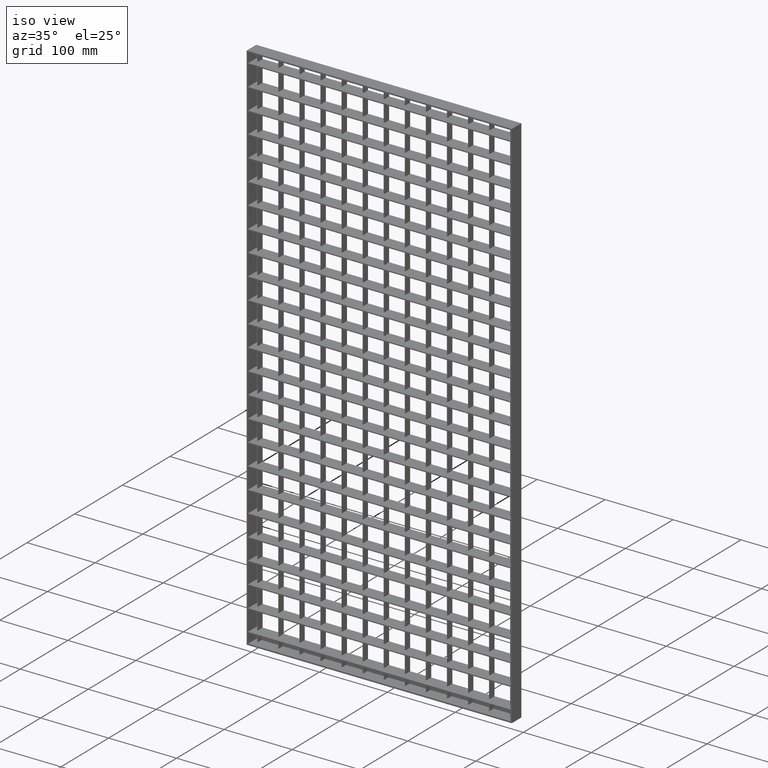
[diagram: clean part render]
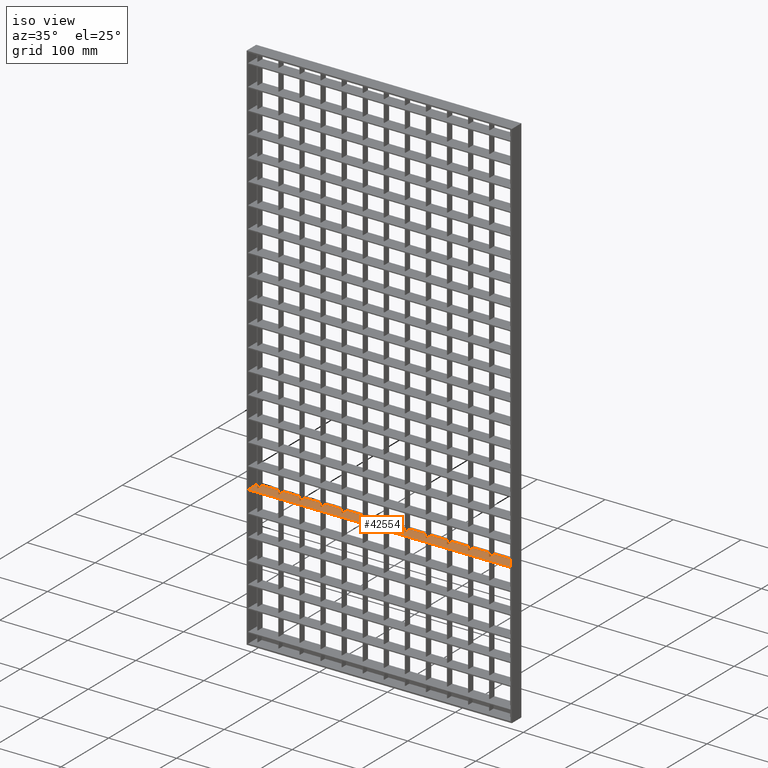
[diagram: same view with one face highlighted and labeled with its STEP entity id]
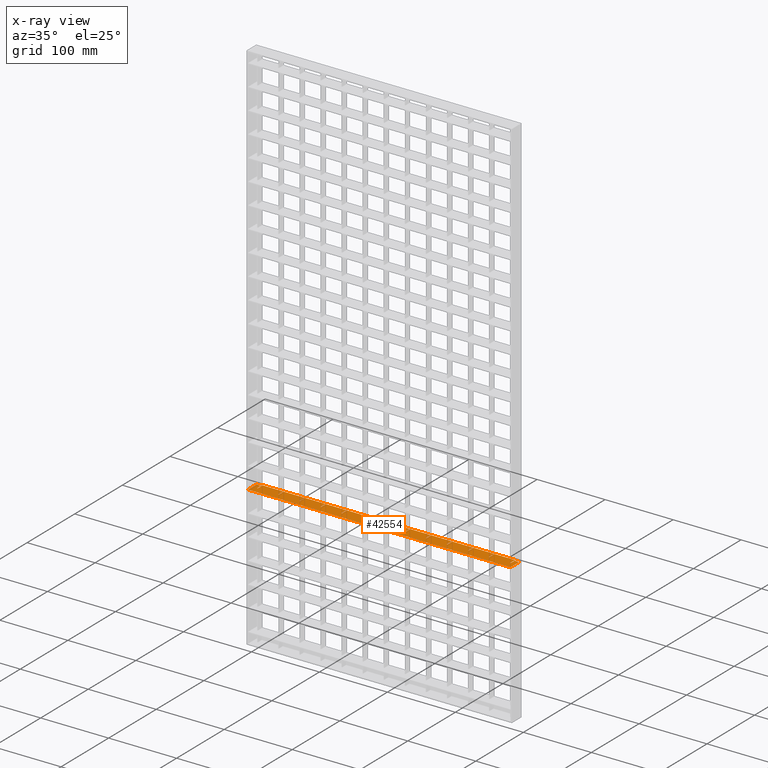
[diagram: x-ray of the same camera — body ghosted, the highlighted face saturated]
A machine part, iso view. The second image highlights one B-rep face of the part: STEP entity #42554.
The next image is the same camera in x-ray: the body ghosted, the highlighted face saturated — about 0% of this face is hidden behind the body in this view.
In plain terms, the highlighted planar face has unit normal (0, 0, -1).
Its self-contained STEP definition (entity closure, byte-faithful):
#220 = LINE ( 'NONE', #12262, #16408 ) ;
#249 = ORIENTED_EDGE ( 'NONE', *, *, #36149, .T. ) ;
#287 = VECTOR ( 'NONE', #23202, 1000.000000000000000 ) ;
#300 = ORIENTED_EDGE ( 'NONE', *, *, #33059, .T. ) ;
#628 = VECTOR ( 'NONE', #3804, 1000.000000000000000 ) ;
#653 = DIRECTION ( 'NONE',  ( 1.000000000000000000, -3.061616997868380700E-016, 0.0000000000000000000 ) ) ;
#769 = CARTESIAN_POINT ( 'NONE',  ( 226.5000000000001100, -9.999999999999877400, -583.2499999999997700 ) ) ;
#839 = LINE ( 'NONE', #14667, #2681 ) ;
#850 = CARTESIAN_POINT ( 'NONE',  ( 318.5000000000001100, 1.006284330175759700E-015, -583.2499999999997700 ) ) ;
#895 = VERTEX_POINT ( 'NONE', #30580 ) ;
#1259 = VERTEX_POINT ( 'NONE', #51604 ) ;
#1494 = DIRECTION ( 'NONE',  ( 1.000000000000000000, -3.061616997868380700E-016, 0.0000000000000000000 ) ) ;
#1510 = LINE ( 'NONE', #3032, #33172 ) ;
#1554 = LINE ( 'NONE', #41578, #6492 ) ;
#1635 = DIRECTION ( 'NONE',  ( 0.0000000000000000000, -1.000000000000000000, 0.0000000000000000000 ) ) ;
#1783 = ORIENTED_EDGE ( 'NONE', *, *, #12044, .T. ) ;
#1871 = ORIENTED_EDGE ( 'NONE', *, *, #38836, .F. ) ;
#1891 = VECTOR ( 'NONE', #43408, 1000.000000000000000 ) ;
#2017 = ORIENTED_EDGE ( 'NONE', *, *, #43592, .F. ) ;
#2133 = CARTESIAN_POINT ( 'NONE',  ( 408.0561711201315200, 10.00000000000012300, -583.2499999999997700 ) ) ;
#2319 = VECTOR ( 'NONE', #11040, 1000.000000000000000 ) ;
#2363 = VECTOR ( 'NONE', #15504, 1000.000000000000000 ) ;
#2480 = LINE ( 'NONE', #31766, #1891 ) ;
#2594 = LINE ( 'NONE', #34078, #21281 ) ;
#2681 = VECTOR ( 'NONE', #46591, 1000.000000000000000 ) ;
#2763 = CARTESIAN_POINT ( 'NONE',  ( 39.49999999999997900, 1.653965597401023900E-015, -583.2499999999997700 ) ) ;
#3019 = CARTESIAN_POINT ( 'NONE',  ( 39.49999999999997900, -9.999999999999877400, -583.2499999999997700 ) ) ;
#3032 = CARTESIAN_POINT ( 'NONE',  ( 408.0561711201315200, 10.00000000000012300, -583.2499999999997700 ) ) ;
#3284 = CARTESIAN_POINT ( 'NONE',  ( 195.0000000000000000, 8.000000000000001800, -583.2499999999997700 ) ) ;
#3315 = LINE ( 'NONE', #21277, #44335 ) ;
#3335 = CARTESIAN_POINT ( 'NONE',  ( 380.5000000000000600, 1.006284330175759700E-015, -583.2499999999997700 ) ) ;
#3448 = LINE ( 'NONE', #17012, #4098 ) ;
#3777 = DIRECTION ( 'NONE',  ( 0.0000000000000000000, 1.000000000000000000, 0.0000000000000000000 ) ) ;
#3804 = DIRECTION ( 'NONE',  ( -1.000000000000000000, -3.061616997868383100E-016, 0.0000000000000000000 ) ) ;
#3839 = VECTOR ( 'NONE', #17934, 1000.000000000000000 ) ;
#3869 = VECTOR ( 'NONE', #49291, 1000.000000000000000 ) ;
#3921 = LINE ( 'NONE', #2133, #12048 ) ;
#4014 = CARTESIAN_POINT ( 'NONE',  ( 408.0561711201315800, -6.938893903907228400E-015, -583.2499999999997700 ) ) ;
#4098 = VECTOR ( 'NONE', #21007, 1000.000000000000000 ) ;
#4112 = CARTESIAN_POINT ( 'NONE',  ( 408.0561711201315200, 10.00000000000012300, -583.2499999999997700 ) ) ;
#4150 = EDGE_CURVE ( 'NONE', #27555, #51453, #9851, .T. ) ;
#4234 = ORIENTED_EDGE ( 'NONE', *, *, #45040, .F. ) ;
#4284 = VERTEX_POINT ( 'NONE', #28096 ) ;
#4311 = VECTOR ( 'NONE', #15690, 1000.000000000000000 ) ;
#4324 = LINE ( 'NONE', #10275, #11200 ) ;
#4377 = ORIENTED_EDGE ( 'NONE', *, *, #11145, .F. ) ;
#4627 = VECTOR ( 'NONE', #35796, 1000.000000000000000 ) ;
#4748 = EDGE_CURVE ( 'NONE', #47775, #15348, #19683, .T. ) ;
#4888 = DIRECTION ( 'NONE',  ( -1.000000000000000000, -3.061616997868383100E-016, 0.0000000000000000000 ) ) ;
#6041 = CARTESIAN_POINT ( 'NONE',  ( 102.5000000000000300, -9.999999999999877400, -583.2499999999997700 ) ) ;
#6054 = CARTESIAN_POINT ( 'NONE',  ( 40.50000000000003600, 10.00000000000001100, -583.2499999999997700 ) ) ;
#6070 = VECTOR ( 'NONE', #12731, 1000.000000000000000 ) ;
#6384 = CARTESIAN_POINT ( 'NONE',  ( 226.5000000000001400, 1.809118201648459400E-015, -583.2499999999997700 ) ) ;
#6492 = VECTOR ( 'NONE', #41033, 1000.000000000000000 ) ;
#6670 = CARTESIAN_POINT ( 'NONE',  ( 163.5000000000000000, 10.00000000000000200, -583.2499999999997700 ) ) ;
#6679 = DIRECTION ( 'NONE',  ( 0.0000000000000000000, -1.000000000000000000, 0.0000000000000000000 ) ) ;
#6804 = EDGE_CURVE ( 'NONE', #38713, #46519, #32513, .T. ) ;
#6911 = VECTOR ( 'NONE', #10704, 1000.000000000000000 ) ;
#6990 = VECTOR ( 'NONE', #27703, 1000.000000000000000 ) ;
#7135 = LINE ( 'NONE', #47652, #4627 ) ;
#7309 = LINE ( 'NONE', #20007, #6070 ) ;
#7383 = CARTESIAN_POINT ( 'NONE',  ( 408.0561711201315800, 1.144917494144692700E-013, -583.2499999999997700 ) ) ;
#7468 = LINE ( 'NONE', #44441, #26124 ) ;
#7522 = VECTOR ( 'NONE', #49965, 1000.000000000000000 ) ;
#7614 = DIRECTION ( 'NONE',  ( 0.0000000000000000000, 1.000000000000000000, 0.0000000000000000000 ) ) ;
#7934 = DIRECTION ( 'NONE',  ( -1.000000000000000000, -3.061616997868383100E-016, 0.0000000000000000000 ) ) ;
#7967 = CARTESIAN_POINT ( 'NONE',  ( 381.5000000000000600, -9.999999999999877400, -583.2499999999997700 ) ) ;
#8002 = ORIENTED_EDGE ( 'NONE', *, *, #26164, .F. ) ;
#8029 = CARTESIAN_POINT ( 'NONE',  ( 288.5000000000001100, 10.00000000000008700, -583.2499999999997700 ) ) ;
#8086 = DIRECTION ( 'NONE',  ( 0.0000000000000000000, -1.000000000000000000, 0.0000000000000000000 ) ) ;
#8089 = ORIENTED_EDGE ( 'NONE', *, *, #23415, .F. ) ;
#8108 = VERTEX_POINT ( 'NONE', #9922 ) ;
#8225 = DIRECTION ( 'NONE',  ( 0.0000000000000000000, 1.000000000000000000, 0.0000000000000000000 ) ) ;
#8242 = ORIENTED_EDGE ( 'NONE', *, *, #47954, .T. ) ;
#8256 = EDGE_CURVE ( 'NONE', #34213, #49858, #51025, .T. ) ;
#8339 = CARTESIAN_POINT ( 'NONE',  ( 381.5000000000000600, 1.191588586062389900E-015, -583.2499999999997700 ) ) ;
#8636 = CARTESIAN_POINT ( 'NONE',  ( 2.000000000000003600, -10.00000000000000000, -583.2499999999997700 ) ) ;
#8667 = VECTOR ( 'NONE', #39142, 1000.000000000000000 ) ;
#8810 = ORIENTED_EDGE ( 'NONE', *, *, #22914, .T. ) ;
#8897 = LINE ( 'NONE', #16611, #6990 ) ;
#8934 = VERTEX_POINT ( 'NONE', #39312 ) ;
#8984 = CARTESIAN_POINT ( 'NONE',  ( 388.0000000000000000, -9.999999999999877400, -583.2499999999997700 ) ) ;
#9039 = VECTOR ( 'NONE', #6679, 1000.000000000000000 ) ;
#9428 = CARTESIAN_POINT ( 'NONE',  ( 195.5000000000000000, 10.00000000000005700, -583.2499999999997700 ) ) ;
#9617 = ORIENTED_EDGE ( 'NONE', *, *, #23058, .F. ) ;
#9800 = EDGE_CURVE ( 'NONE', #36032, #33552, #39652, .T. ) ;
#9825 = LINE ( 'NONE', #34245, #2319 ) ;
#9827 = CARTESIAN_POINT ( 'NONE',  ( 225.5000000000001100, 10.00000000000006800, -583.2499999999997700 ) ) ;
#9851 = LINE ( 'NONE', #3284, #48337 ) ;
#9922 = CARTESIAN_POINT ( 'NONE',  ( 256.5000000000001100, 10.00000000000007600, -583.2499999999997700 ) ) ;
#10034 = CARTESIAN_POINT ( 'NONE',  ( 408.0561711201315800, -5.377642775528102000E-014, -583.2499999999997700 ) ) ;
#10168 = DIRECTION ( 'NONE',  ( -1.000000000000000000, -3.061616997868383100E-016, 0.0000000000000000000 ) ) ;
#10275 = CARTESIAN_POINT ( 'NONE',  ( 408.0561711201315200, 10.00000000000012300, -583.2499999999997700 ) ) ;
#10283 = CARTESIAN_POINT ( 'NONE',  ( 71.50000000000001400, 0.0000000000000000000, -583.2499999999997700 ) ) ;
#10370 = VERTEX_POINT ( 'NONE', #31501 ) ;
#10704 = DIRECTION ( 'NONE',  ( 0.0000000000000000000, -1.000000000000000000, 0.0000000000000000000 ) ) ;
#10957 = CARTESIAN_POINT ( 'NONE',  ( 257.5000000000001100, 10.00000000000007600, -583.2499999999997700 ) ) ;
#11002 = CARTESIAN_POINT ( 'NONE',  ( 9.500000000000008900, 0.0000000000000000000, -583.2499999999997700 ) ) ;
#11040 = DIRECTION ( 'NONE',  ( 0.0000000000000000000, -1.000000000000000000, 0.0000000000000000000 ) ) ;
#11139 = CARTESIAN_POINT ( 'NONE',  ( 102.5000000000000300, 0.0000000000000000000, -583.2499999999997700 ) ) ;
#11145 = EDGE_CURVE ( 'NONE', #1259, #33552, #45116, .T. ) ;
#11200 = VECTOR ( 'NONE', #37982, 1000.000000000000000 ) ;
#11280 = LINE ( 'NONE', #34434, #6911 ) ;
#11316 = VERTEX_POINT ( 'NONE', #11139 ) ;
#11426 = CARTESIAN_POINT ( 'NONE',  ( 319.5000000000001100, 1.091655737101455300E-015, -583.2499999999997700 ) ) ;
#11718 = DIRECTION ( 'NONE',  ( 0.0000000000000000000, 1.000000000000000000, 0.0000000000000000000 ) ) ;
#11744 = ORIENTED_EDGE ( 'NONE', *, *, #9800, .T. ) ;
#11791 = VECTOR ( 'NONE', #45193, 1000.000000000000000 ) ;
#12044 = EDGE_CURVE ( 'NONE', #18430, #24119, #1510, .T. ) ;
#12048 = VECTOR ( 'NONE', #10168, 1000.000000000000000 ) ;
#12058 = CARTESIAN_POINT ( 'NONE',  ( 102.5000000000000300, 10.00000000000003000, -583.2499999999997700 ) ) ;
#12195 = CARTESIAN_POINT ( 'NONE',  ( 408.0561711201315200, 10.00000000000012300, -583.2499999999997700 ) ) ;
#12253 = LINE ( 'NONE', #25306, #19695 ) ;
#12262 = CARTESIAN_POINT ( 'NONE',  ( 288.5000000000001100, -9.999999999999877400, -583.2499999999997700 ) ) ;
#12281 = CARTESIAN_POINT ( 'NONE',  ( 408.0561711201315800, 7.632783294297951200E-014, -583.2499999999997700 ) ) ;
#12333 = CARTESIAN_POINT ( 'NONE',  ( 380.5000000000000600, -9.999999999999877400, -583.2499999999997700 ) ) ;
#12368 = VERTEX_POINT ( 'NONE', #10283 ) ;
#12435 = CARTESIAN_POINT ( 'NONE',  ( 8.500000000000007100, 8.365702838930745700E-016, -583.2499999999997700 ) ) ;
#12725 = DIRECTION ( 'NONE',  ( -1.000000000000000000, -3.061616997868380700E-016, 0.0000000000000000000 ) ) ;
#12731 = DIRECTION ( 'NONE',  ( 0.0000000000000000000, 1.000000000000000000, 0.0000000000000000000 ) ) ;
#12741 = LINE ( 'NONE', #30620, #287 ) ;
#12802 = VERTEX_POINT ( 'NONE', #32738 ) ;
#12929 = EDGE_CURVE ( 'NONE', #33005, #49545, #16212, .T. ) ;
#12945 = ORIENTED_EDGE ( 'NONE', *, *, #6804, .T. ) ;
#13196 = AXIS2_PLACEMENT_3D ( 'NONE', #41102, #44797, #21382 ) ;
#13542 = EDGE_CURVE ( 'NONE', #12802, #23915, #4324, .T. ) ;
#13603 = DIRECTION ( 'NONE',  ( 0.0000000000000000000, -1.000000000000000000, 0.0000000000000000000 ) ) ;
#13604 = CARTESIAN_POINT ( 'NONE',  ( 408.0561711201315800, -9.999999999999877400, -583.2499999999997700 ) ) ;
#13668 = LINE ( 'NONE', #6041, #44068 ) ;
#13889 = LINE ( 'NONE', #12333, #20695 ) ;
#14327 = CARTESIAN_POINT ( 'NONE',  ( 2.000000000000003600, 8.000000000000001800, -583.2499999999997700 ) ) ;
#14328 = ORIENTED_EDGE ( 'NONE', *, *, #4748, .T. ) ;
#14417 = CARTESIAN_POINT ( 'NONE',  ( 132.5000000000000000, 6.367045859712454800E-016, -583.2499999999997700 ) ) ;
#14581 = CARTESIAN_POINT ( 'NONE',  ( 408.0561711201315800, 8.500145032286354800E-014, -583.2499999999997700 ) ) ;
#14667 = CARTESIAN_POINT ( 'NONE',  ( 132.5000000000000000, -9.999999999999877400, -583.2499999999997700 ) ) ;
#14888 = ORIENTED_EDGE ( 'NONE', *, *, #38252, .T. ) ;
#14974 = CARTESIAN_POINT ( 'NONE',  ( 40.49999999999997900, 0.0000000000000000000, -583.2499999999997700 ) ) ;
#15036 = ORIENTED_EDGE ( 'NONE', *, *, #36091, .T. ) ;
#15348 = VERTEX_POINT ( 'NONE', #12435 ) ;
#15479 = ORIENTED_EDGE ( 'NONE', *, *, #4150, .F. ) ;
#15504 = DIRECTION ( 'NONE',  ( 1.000000000000000000, -3.061616997868380700E-016, 0.0000000000000000000 ) ) ;
#15690 = DIRECTION ( 'NONE',  ( 0.0000000000000000000, 1.000000000000000000, 0.0000000000000000000 ) ) ;
#15747 = VERTEX_POINT ( 'NONE', #34395 ) ;
#16131 = VERTEX_POINT ( 'NONE', #32795 ) ;
#16136 = CARTESIAN_POINT ( 'NONE',  ( 39.50000000000000700, 10.00000000000000200, -583.2499999999997700 ) ) ;
#16144 = ORIENTED_EDGE ( 'NONE', *, *, #43278, .T. ) ;
#16212 = LINE ( 'NONE', #10034, #7522 ) ;
#16246 = VERTEX_POINT ( 'NONE', #14417 ) ;
#16300 = DIRECTION ( 'NONE',  ( -1.000000000000000000, -3.061616997868383100E-016, 0.0000000000000000000 ) ) ;
#16379 = VERTEX_POINT ( 'NONE', #10957 ) ;
#16408 = VECTOR ( 'NONE', #8225, 1000.000000000000000 ) ;
#16451 = DIRECTION ( 'NONE',  ( 0.0000000000000000000, 1.000000000000000000, 0.0000000000000000000 ) ) ;
#16595 = ORIENTED_EDGE ( 'NONE', *, *, #43461, .F. ) ;
#16611 = CARTESIAN_POINT ( 'NONE',  ( 163.5000000000000000, -9.999999999999877400, -583.2499999999997700 ) ) ;
#16634 = EDGE_CURVE ( 'NONE', #8934, #36814, #37536, .T. ) ;
#16655 = LINE ( 'NONE', #21248, #44583 ) ;
#16774 = DIRECTION ( 'NONE',  ( -1.000000000000000000, -3.061616997868380700E-016, 0.0000000000000000000 ) ) ;
#16790 = ORIENTED_EDGE ( 'NONE', *, *, #18747, .T. ) ;
#17012 = CARTESIAN_POINT ( 'NONE',  ( 408.0561711201315200, 10.00000000000012300, -583.2499999999997700 ) ) ;
#17274 = ORIENTED_EDGE ( 'NONE', *, *, #27445, .F. ) ;
#17403 = DIRECTION ( 'NONE',  ( 0.0000000000000000000, 1.000000000000000000, 0.0000000000000000000 ) ) ;
#17433 = CARTESIAN_POINT ( 'NONE',  ( 194.5000000000000000, 2.271495212987131900E-015, -583.2499999999997700 ) ) ;
#17900 = VERTEX_POINT ( 'NONE', #36086 ) ;
#17934 = DIRECTION ( 'NONE',  ( -1.000000000000000000, -3.061616997868383100E-016, 0.0000000000000000000 ) ) ;
#18095 = CARTESIAN_POINT ( 'NONE',  ( 388.0000000000000000, -10.00000000000000200, -583.2499999999997700 ) ) ;
#18232 = VECTOR ( 'NONE', #29555, 1000.000000000000000 ) ;
#18430 = VERTEX_POINT ( 'NONE', #39570 ) ;
#18516 = CARTESIAN_POINT ( 'NONE',  ( 408.0561711201315200, 10.00000000000012300, -583.2499999999997700 ) ) ;
#18747 = EDGE_CURVE ( 'NONE', #36814, #11316, #13668, .T. ) ;
#18757 = DIRECTION ( 'NONE',  ( -1.000000000000000000, -3.061616997868380700E-016, 0.0000000000000000000 ) ) ;
#18910 = LINE ( 'NONE', #43617, #20155 ) ;
#18969 = VERTEX_POINT ( 'NONE', #42824 ) ;
#19126 = ORIENTED_EDGE ( 'NONE', *, *, #33510, .T. ) ;
#19183 = VECTOR ( 'NONE', #37897, 1000.000000000000000 ) ;
#19383 = CARTESIAN_POINT ( 'NONE',  ( 381.5000000000000600, 10.00000000000011500, -583.2499999999997700 ) ) ;
#19469 = EDGE_CURVE ( 'NONE', #12802, #32163, #9825, .T. ) ;
#19501 = VERTEX_POINT ( 'NONE', #6670 ) ;
#19683 = LINE ( 'NONE', #33751, #34547 ) ;
#19691 = CARTESIAN_POINT ( 'NONE',  ( 8.000000000000007100, 10.00000000000000000, -583.2499999999997700 ) ) ;
#19695 = VECTOR ( 'NONE', #1494, 1000.000000000000000 ) ;
#19856 = DIRECTION ( 'NONE',  ( -1.000000000000000000, -3.061616997868383100E-016, 0.0000000000000000000 ) ) ;
#19962 = CARTESIAN_POINT ( 'NONE',  ( 380.5000000000000600, 10.00000000000011500, -583.2499999999997700 ) ) ;
#20007 = CARTESIAN_POINT ( 'NONE',  ( 2.000000000000003600, -10.00000000000000000, -583.2499999999997700 ) ) ;
#20092 = VERTEX_POINT ( 'NONE', #42371 ) ;
#20155 = VECTOR ( 'NONE', #19856, 1000.000000000000000 ) ;
#20166 = EDGE_CURVE ( 'NONE', #11316, #895, #34558, .T. ) ;
#20285 = DIRECTION ( 'NONE',  ( -1.000000000000000000, -3.061616997868383100E-016, 0.0000000000000000000 ) ) ;
#20363 = CARTESIAN_POINT ( 'NONE',  ( 408.0561711201315200, 10.00000000000012300, -583.2499999999997700 ) ) ;
#20616 = ORIENTED_EDGE ( 'NONE', *, *, #8256, .F. ) ;
#20695 = VECTOR ( 'NONE', #48424, 1000.000000000000000 ) ;
#20750 = VECTOR ( 'NONE', #12725, 1000.000000000000000 ) ;
#21007 = DIRECTION ( 'NONE',  ( -1.000000000000000000, -3.061616997868383100E-016, 0.0000000000000000000 ) ) ;
#21153 = DIRECTION ( 'NONE',  ( 0.0000000000000000000, 1.000000000000000000, 0.0000000000000000000 ) ) ;
#21248 = CARTESIAN_POINT ( 'NONE',  ( 257.5000000000001100, -9.999999999999877400, -583.2499999999997700 ) ) ;
#21277 = CARTESIAN_POINT ( 'NONE',  ( 408.0561711201315200, 10.00000000000012300, -583.2499999999997700 ) ) ;
#21281 = VECTOR ( 'NONE', #1635, 1000.000000000000000 ) ;
#21382 = DIRECTION ( 'NONE',  ( -1.000000000000000000, 0.0000000000000000000, -0.0000000000000000000 ) ) ;
#21551 = DIRECTION ( 'NONE',  ( 0.0000000000000000000, -1.000000000000000000, 0.0000000000000000000 ) ) ;
#21770 = LINE ( 'NONE', #33174, #11791 ) ;
#21847 = DIRECTION ( 'NONE',  ( -1.000000000000000000, -3.061616997868383100E-016, 0.0000000000000000000 ) ) ;
#22405 = VECTOR ( 'NONE', #42991, 1000.000000000000000 ) ;
#22559 = LINE ( 'NONE', #769, #47961 ) ;
#22572 = VERTEX_POINT ( 'NONE', #25189 ) ;
#22654 = LINE ( 'NONE', #29355, #41200 ) ;
#22822 = EDGE_CURVE ( 'NONE', #39484, #16246, #44879, .T. ) ;
#22914 = EDGE_CURVE ( 'NONE', #35815, #16379, #50466, .T. ) ;
#23058 = EDGE_CURVE ( 'NONE', #49545, #32166, #22559, .T. ) ;
#23202 = DIRECTION ( 'NONE',  ( 1.000000000000000000, -3.061616997868380700E-016, 0.0000000000000000000 ) ) ;
#23415 = EDGE_CURVE ( 'NONE', #33068, #28127, #41054, .T. ) ;
#23536 = CARTESIAN_POINT ( 'NONE',  ( 194.5000000000000000, -9.999999999999877400, -583.2499999999997700 ) ) ;
#23543 = CARTESIAN_POINT ( 'NONE',  ( 164.5000000000000000, -9.999999999999877400, -583.2499999999997700 ) ) ;
#23643 = CARTESIAN_POINT ( 'NONE',  ( 8.500000000000007100, -9.999999999999877400, -583.2499999999997700 ) ) ;
#23776 = LINE ( 'NONE', #13604, #3839 ) ;
#23777 = ORIENTED_EDGE ( 'NONE', *, *, #47896, .T. ) ;
#23906 = EDGE_CURVE ( 'NONE', #50705, #46830, #23776, .T. ) ;
#23915 = VERTEX_POINT ( 'NONE', #29356 ) ;
#24091 = CARTESIAN_POINT ( 'NONE',  ( 195.5000000000000000, -9.999999999999877400, -583.2499999999997700 ) ) ;
#24109 = VERTEX_POINT ( 'NONE', #43242 ) ;
#24119 = VERTEX_POINT ( 'NONE', #28119 ) ;
#24660 = ORIENTED_EDGE ( 'NONE', *, *, #40052, .T. ) ;
#24945 = CARTESIAN_POINT ( 'NONE',  ( 257.5000000000000600, 9.917228881405346900E-016, -583.2499999999997700 ) ) ;
#25189 = CARTESIAN_POINT ( 'NONE',  ( 318.5000000000001100, 10.00000000000009600, -583.2499999999997700 ) ) ;
#25306 = CARTESIAN_POINT ( 'NONE',  ( 408.0561711201315800, -4.510281037539698400E-014, -583.2499999999997700 ) ) ;
#25502 = LINE ( 'NONE', #23643, #36657 ) ;
#25703 = LINE ( 'NONE', #26505, #46227 ) ;
#25818 = DIRECTION ( 'NONE',  ( -1.000000000000000000, -3.061616997868380700E-016, 0.0000000000000000000 ) ) ;
#26026 = CARTESIAN_POINT ( 'NONE',  ( 287.5000000000001100, 10.00000000000008700, -583.2499999999997700 ) ) ;
#26119 = VECTOR ( 'NONE', #39458, 1000.000000000000000 ) ;
#26124 = VECTOR ( 'NONE', #36768, 1000.000000000000000 ) ;
#26164 = EDGE_CURVE ( 'NONE', #46830, #49242, #7309, .T. ) ;
#26233 = ORIENTED_EDGE ( 'NONE', *, *, #31079, .F. ) ;
#26383 = VECTOR ( 'NONE', #20285, 1000.000000000000000 ) ;
#26505 = CARTESIAN_POINT ( 'NONE',  ( 408.0561711201315200, 10.00000000000012300, -583.2499999999997700 ) ) ;
#26544 = CARTESIAN_POINT ( 'NONE',  ( 349.5000000000001700, 1.006284330175759700E-015, -583.2499999999997700 ) ) ;
#26737 = CARTESIAN_POINT ( 'NONE',  ( 2.000000000000003600, 8.000000000000001800, -583.2499999999997700 ) ) ;
#26788 = ORIENTED_EDGE ( 'NONE', *, *, #36911, .T. ) ;
#26826 = DIRECTION ( 'NONE',  ( -1.000000000000000000, -3.061616997868383100E-016, 0.0000000000000000000 ) ) ;
#27222 = ORIENTED_EDGE ( 'NONE', *, *, #33818, .F. ) ;
#27263 = ORIENTED_EDGE ( 'NONE', *, *, #31962, .T. ) ;
#27275 = VERTEX_POINT ( 'NONE', #19962 ) ;
#27285 = LINE ( 'NONE', #7383, #8667 ) ;
#27445 = EDGE_CURVE ( 'NONE', #29875, #49936, #28315, .T. ) ;
#27514 = EDGE_CURVE ( 'NONE', #31055, #47535, #3448, .T. ) ;
#27555 = VERTEX_POINT ( 'NONE', #46266 ) ;
#27558 = ORIENTED_EDGE ( 'NONE', *, *, #23906, .F. ) ;
#27584 = VERTEX_POINT ( 'NONE', #3335 ) ;
#27703 = DIRECTION ( 'NONE',  ( 0.0000000000000000000, 1.000000000000000000, 0.0000000000000000000 ) ) ;
#27735 = EDGE_CURVE ( 'NONE', #27584, #34213, #27817, .T. ) ;
#27758 = LINE ( 'NONE', #8984, #45168 ) ;
#27775 = VERTEX_POINT ( 'NONE', #8029 ) ;
#27817 = LINE ( 'NONE', #4014, #2363 ) ;
#28090 = CARTESIAN_POINT ( 'NONE',  ( 408.0561711201315800, -3.469446951953614200E-014, -583.2499999999997700 ) ) ;
#28096 = CARTESIAN_POINT ( 'NONE',  ( 164.5000000000000000, 0.0000000000000000000, -583.2499999999997700 ) ) ;
#28119 = CARTESIAN_POINT ( 'NONE',  ( 71.50000000000005700, 10.00000000000002100, -583.2499999999997700 ) ) ;
#28127 = VERTEX_POINT ( 'NONE', #30037 ) ;
#28224 = ORIENTED_EDGE ( 'NONE', *, *, #22822, .T. ) ;
#28315 = LINE ( 'NONE', #28090, #29566 ) ;
#28552 = CARTESIAN_POINT ( 'NONE',  ( 319.5000000000001100, -9.999999999999877400, -583.2499999999997700 ) ) ;
#28858 = ORIENTED_EDGE ( 'NONE', *, *, #19469, .F. ) ;
#29355 = CARTESIAN_POINT ( 'NONE',  ( 287.5000000000001100, -9.999999999999877400, -583.2499999999997700 ) ) ;
#29356 = CARTESIAN_POINT ( 'NONE',  ( 319.5000000000001100, 10.00000000000009600, -583.2499999999997700 ) ) ;
#29539 = CARTESIAN_POINT ( 'NONE',  ( 287.5000000000001100, 1.006284330175759700E-015, -583.2499999999997700 ) ) ;
#29555 = DIRECTION ( 'NONE',  ( 0.0000000000000000000, -1.000000000000000000, 0.0000000000000000000 ) ) ;
#29560 = EDGE_CURVE ( 'NONE', #18969, #49858, #18910, .T. ) ;
#29566 = VECTOR ( 'NONE', #653, 1000.000000000000000 ) ;
#29732 = LINE ( 'NONE', #14327, #19183 ) ;
#29846 = LINE ( 'NONE', #12195, #628 ) ;
#29875 = VERTEX_POINT ( 'NONE', #29539 ) ;
#30037 = CARTESIAN_POINT ( 'NONE',  ( 350.5000000000001700, 10.00000000000010700, -583.2499999999997700 ) ) ;
#30115 = DIRECTION ( 'NONE',  ( 0.0000000000000000000, 1.000000000000000000, 0.0000000000000000000 ) ) ;
#30120 = CARTESIAN_POINT ( 'NONE',  ( 70.50000000000000000, 10.00000000000000200, -583.2499999999997700 ) ) ;
#30405 = LINE ( 'NONE', #38994, #22405 ) ;
#30547 = EDGE_CURVE ( 'NONE', #35815, #29875, #22654, .T. ) ;
#30580 = CARTESIAN_POINT ( 'NONE',  ( 101.4999999999999900, 1.554032748440090900E-015, -583.2499999999997700 ) ) ;
#30597 = VERTEX_POINT ( 'NONE', #11426 ) ;
#30620 = CARTESIAN_POINT ( 'NONE',  ( 408.0561711201315800, -1.561251128379126400E-014, -583.2499999999997700 ) ) ;
#30655 = LINE ( 'NONE', #18516, #39960 ) ;
#30800 = CARTESIAN_POINT ( 'NONE',  ( 40.49999999999997900, -9.999999999999877400, -583.2499999999997700 ) ) ;
#30807 = EDGE_CURVE ( 'NONE', #48677, #19501, #8897, .T. ) ;
#30824 = DIRECTION ( 'NONE',  ( -1.000000000000000000, -3.061616997868383100E-016, 0.0000000000000000000 ) ) ;
#30903 = ORIENTED_EDGE ( 'NONE', *, *, #33469, .T. ) ;
#30944 = CARTESIAN_POINT ( 'NONE',  ( 195.5000000000000000, 0.0000000000000000000, -583.2499999999997700 ) ) ;
#30967 = CARTESIAN_POINT ( 'NONE',  ( 225.5000000000001100, 1.006284330175759700E-015, -583.2499999999997700 ) ) ;
#30980 = DIRECTION ( 'NONE',  ( -1.000000000000000000, -3.061616997868383100E-016, 0.0000000000000000000 ) ) ;
#31055 = VERTEX_POINT ( 'NONE', #9827 ) ;
#31075 = VECTOR ( 'NONE', #7614, 1000.000000000000000 ) ;
#31079 = EDGE_CURVE ( 'NONE', #18969, #27555, #2594, .T. ) ;
#31182 = CARTESIAN_POINT ( 'NONE',  ( 8.500000000000007100, 10.00000000000000200, -583.2499999999997700 ) ) ;
#31434 = EDGE_CURVE ( 'NONE', #19501, #10370, #38616, .T. ) ;
#31473 = CARTESIAN_POINT ( 'NONE',  ( 350.5000000000001700, 2.008983899570310100E-015, -583.2499999999997700 ) ) ;
#31501 = CARTESIAN_POINT ( 'NONE',  ( 133.5000000000000000, 10.00000000000004100, -583.2499999999997700 ) ) ;
#31713 = VECTOR ( 'NONE', #21847, 1000.000000000000000 ) ;
#31766 = CARTESIAN_POINT ( 'NONE',  ( 408.0561711201315800, 1.040834085586084300E-013, -583.2499999999997700 ) ) ;
#31787 = VERTEX_POINT ( 'NONE', #2763 ) ;
#31962 = EDGE_CURVE ( 'NONE', #15348, #36032, #25502, .T. ) ;
#32163 = VERTEX_POINT ( 'NONE', #26544 ) ;
#32166 = VERTEX_POINT ( 'NONE', #40568 ) ;
#32254 = VERTEX_POINT ( 'NONE', #6054 ) ;
#32274 = ORIENTED_EDGE ( 'NONE', *, *, #20166, .T. ) ;
#32350 = EDGE_CURVE ( 'NONE', #39194, #30597, #30405, .T. ) ;
#32460 = LINE ( 'NONE', #37244, #3869 ) ;
#32513 = LINE ( 'NONE', #32961, #20750 ) ;
#32738 = CARTESIAN_POINT ( 'NONE',  ( 349.5000000000001700, 10.00000000000010700, -583.2499999999997700 ) ) ;
#32795 = CARTESIAN_POINT ( 'NONE',  ( 9.500000000000008900, 10.00000000000000200, -583.2499999999997700 ) ) ;
#32800 = EDGE_CURVE ( 'NONE', #20092, #35189, #1554, .T. ) ;
#32864 = DIRECTION ( 'NONE',  ( 0.0000000000000000000, 1.000000000000000000, 0.0000000000000000000 ) ) ;
#32892 = LINE ( 'NONE', #30800, #26119 ) ;
#32961 = CARTESIAN_POINT ( 'NONE',  ( 408.0561711201315800, 6.765421556309547700E-014, -583.2499999999997700 ) ) ;
#33005 = VERTEX_POINT ( 'NONE', #30967 ) ;
#33059 = EDGE_CURVE ( 'NONE', #24109, #4284, #43162, .T. ) ;
#33068 = VERTEX_POINT ( 'NONE', #31473 ) ;
#33172 = VECTOR ( 'NONE', #30824, 1000.000000000000000 ) ;
#33174 = CARTESIAN_POINT ( 'NONE',  ( 9.500000000000008900, -9.999999999999877400, -583.2499999999997700 ) ) ;
#33231 = LINE ( 'NONE', #12281, #40704 ) ;
#33469 = EDGE_CURVE ( 'NONE', #49467, #16131, #25703, .T. ) ;
#33510 = EDGE_CURVE ( 'NONE', #17900, #24109, #30655, .T. ) ;
#33552 = VERTEX_POINT ( 'NONE', #19691 ) ;
#33693 = ORIENTED_EDGE ( 'NONE', *, *, #31434, .T. ) ;
#33723 = ORIENTED_EDGE ( 'NONE', *, *, #37076, .F. ) ;
#33751 = CARTESIAN_POINT ( 'NONE',  ( 408.0561711201315800, 1.231653667943533000E-013, -583.2499999999997700 ) ) ;
#33818 = EDGE_CURVE ( 'NONE', #31055, #33005, #39313, .T. ) ;
#33825 = ORIENTED_EDGE ( 'NONE', *, *, #36639, .F. ) ;
#34068 = VERTEX_POINT ( 'NONE', #14974 ) ;
#34078 = CARTESIAN_POINT ( 'NONE',  ( 382.0000000000000600, 8.000000000000001800, -583.2499999999997700 ) ) ;
#34213 = VERTEX_POINT ( 'NONE', #8339 ) ;
#34231 = ORIENTED_EDGE ( 'NONE', *, *, #38580, .T. ) ;
#34245 = CARTESIAN_POINT ( 'NONE',  ( 349.5000000000001700, -9.999999999999877400, -583.2499999999997700 ) ) ;
#34395 = CARTESIAN_POINT ( 'NONE',  ( 256.5000000000001100, 1.006284330175759700E-015, -583.2499999999997700 ) ) ;
#34402 = EDGE_LOOP ( 'NONE', ( #20616, #50385, #1871, #40153, #8089, #16595, #28858, #49167, #37239, #35874, #2017, #8242, #46121, #17274, #48318, #8810, #33723, #4234, #41201, #34231, #9617, #49270, #27222, #42087, #51162, #12945, #26788, #19126, #300, #14888, #39491, #33693, #16144, #28224, #35606, #47720, #16790, #32274, #44328, #1783, #48553, #23777, #35005, #24660, #47025, #249, #15036, #30903, #50076, #14328, #27263, #11744, #4377, #33825, #8002, #27558, #42672, #15479, #26233, #49176 ) ) ;
#34434 = CARTESIAN_POINT ( 'NONE',  ( 71.50000000000001400, -9.999999999999877400, -583.2499999999997700 ) ) ;
#34483 = DIRECTION ( 'NONE',  ( -1.000000000000000000, -3.061616997868380700E-016, 0.0000000000000000000 ) ) ;
#34547 = VECTOR ( 'NONE', #25818, 1000.000000000000000 ) ;
#34558 = LINE ( 'NONE', #38526, #48972 ) ;
#35005 = ORIENTED_EDGE ( 'NONE', *, *, #32800, .T. ) ;
#35189 = VERTEX_POINT ( 'NONE', #30120 ) ;
#35321 = EDGE_CURVE ( 'NONE', #24119, #12368, #11280, .T. ) ;
#35606 = ORIENTED_EDGE ( 'NONE', *, *, #38644, .T. ) ;
#35796 = DIRECTION ( 'NONE',  ( 0.0000000000000000000, -1.000000000000000000, 0.0000000000000000000 ) ) ;
#35815 = VERTEX_POINT ( 'NONE', #26026 ) ;
#35874 = ORIENTED_EDGE ( 'NONE', *, *, #32350, .F. ) ;
#36032 = VERTEX_POINT ( 'NONE', #31182 ) ;
#36086 = CARTESIAN_POINT ( 'NONE',  ( 194.5000000000000000, 10.00000000000000200, -583.2499999999997700 ) ) ;
#36091 = EDGE_CURVE ( 'NONE', #31787, #49467, #42828, .T. ) ;
#36149 = EDGE_CURVE ( 'NONE', #34068, #31787, #27285, .T. ) ;
#36160 = VECTOR ( 'NONE', #34483, 1000.000000000000000 ) ;
#36318 = CARTESIAN_POINT ( 'NONE',  ( 225.5000000000001100, -9.999999999999877400, -583.2499999999997700 ) ) ;
#36541 = VECTOR ( 'NONE', #16300, 1000.000000000000000 ) ;
#36639 = EDGE_CURVE ( 'NONE', #49242, #1259, #29732, .T. ) ;
#36657 = VECTOR ( 'NONE', #3777, 1000.000000000000000 ) ;
#36768 = DIRECTION ( 'NONE',  ( 0.0000000000000000000, -1.000000000000000000, 0.0000000000000000000 ) ) ;
#36814 = VERTEX_POINT ( 'NONE', #12058 ) ;
#36911 = EDGE_CURVE ( 'NONE', #46519, #17900, #39584, .T. ) ;
#37076 = EDGE_CURVE ( 'NONE', #41105, #16379, #16655, .T. ) ;
#37239 = ORIENTED_EDGE ( 'NONE', *, *, #48182, .F. ) ;
#37244 = CARTESIAN_POINT ( 'NONE',  ( 101.5000000000000300, -9.999999999999877400, -583.2499999999997700 ) ) ;
#37273 = LINE ( 'NONE', #45773, #31713 ) ;
#37536 = LINE ( 'NONE', #48231, #26383 ) ;
#37841 = LINE ( 'NONE', #28552, #49703 ) ;
#37897 = DIRECTION ( 'NONE',  ( 1.000000000000000000, 0.0000000000000000000, 0.0000000000000000000 ) ) ;
#37975 = CARTESIAN_POINT ( 'NONE',  ( 133.5000000000000000, 0.0000000000000000000, -583.2499999999997700 ) ) ;
#37982 = DIRECTION ( 'NONE',  ( -1.000000000000000000, -3.061616997868383100E-016, 0.0000000000000000000 ) ) ;
#38093 = CARTESIAN_POINT ( 'NONE',  ( 388.0000000000000600, 8.000000000000001800, -583.2499999999997700 ) ) ;
#38252 = EDGE_CURVE ( 'NONE', #4284, #48677, #33231, .T. ) ;
#38526 = CARTESIAN_POINT ( 'NONE',  ( 408.0561711201315800, 9.540979117872439000E-014, -583.2499999999997700 ) ) ;
#38580 = EDGE_CURVE ( 'NONE', #8108, #32166, #3921, .T. ) ;
#38616 = LINE ( 'NONE', #20363, #41726 ) ;
#38644 = EDGE_CURVE ( 'NONE', #16246, #8934, #839, .T. ) ;
#38713 = VERTEX_POINT ( 'NONE', #30944 ) ;
#38836 = EDGE_CURVE ( 'NONE', #27275, #27584, #13889, .T. ) ;
#38854 = EDGE_CURVE ( 'NONE', #895, #18430, #32460, .T. ) ;
#38853 = LINE ( 'NONE', #49776, #9039 ) ;
#38994 = CARTESIAN_POINT ( 'NONE',  ( 408.0561711201315800, -2.602085213965210600E-014, -583.2499999999997700 ) ) ;
#39053 = DIRECTION ( 'NONE',  ( 1.000000000000000000, 0.0000000000000000000, 0.0000000000000000000 ) ) ;
#39142 = DIRECTION ( 'NONE',  ( -1.000000000000000000, -3.061616997868380700E-016, 0.0000000000000000000 ) ) ;
#39194 = VERTEX_POINT ( 'NONE', #850 ) ;
#39312 = CARTESIAN_POINT ( 'NONE',  ( 132.5000000000000000, 10.00000000000000200, -583.2499999999997700 ) ) ;
#39313 = LINE ( 'NONE', #36318, #18232 ) ;
#39458 = DIRECTION ( 'NONE',  ( 0.0000000000000000000, -1.000000000000000000, 0.0000000000000000000 ) ) ;
#39484 = VERTEX_POINT ( 'NONE', #37975 ) ;
#39491 = ORIENTED_EDGE ( 'NONE', *, *, #30807, .T. ) ;
#39570 = CARTESIAN_POINT ( 'NONE',  ( 101.5000000000000000, 10.00000000000000200, -583.2499999999997700 ) ) ;
#39584 = LINE ( 'NONE', #23536, #51431 ) ;
#39652 = LINE ( 'NONE', #4112, #36541 ) ;
#39960 = VECTOR ( 'NONE', #26826, 1000.000000000000000 ) ;
#40052 = EDGE_CURVE ( 'NONE', #35189, #32254, #37273, .T. ) ;
#40153 = ORIENTED_EDGE ( 'NONE', *, *, #46327, .T. ) ;
#40187 = CARTESIAN_POINT ( 'NONE',  ( 288.5000000000001100, 1.909051050609410800E-015, -583.2499999999997700 ) ) ;
#40247 = EDGE_CURVE ( 'NONE', #32254, #34068, #32892, .T. ) ;
#40549 = EDGE_CURVE ( 'NONE', #16131, #47775, #21770, .T. ) ;
#40568 = CARTESIAN_POINT ( 'NONE',  ( 226.5000000000001100, 10.00000000000006800, -583.2499999999997700 ) ) ;
#40704 = VECTOR ( 'NONE', #16774, 1000.000000000000000 ) ;
#41033 = DIRECTION ( 'NONE',  ( 0.0000000000000000000, 1.000000000000000000, 0.0000000000000000000 ) ) ;
#41054 = LINE ( 'NONE', #41931, #44159 ) ;
#41080 = EDGE_CURVE ( 'NONE', #47535, #38713, #49651, .T. ) ;
#41102 = CARTESIAN_POINT ( 'NONE',  ( 408.0561711201315800, -9.999999999999877400, -583.2499999999997700 ) ) ;
#41105 = VERTEX_POINT ( 'NONE', #24945 ) ;
#41200 = VECTOR ( 'NONE', #13603, 1000.000000000000000 ) ;
#41201 = ORIENTED_EDGE ( 'NONE', *, *, #48110, .F. ) ;
#41578 = CARTESIAN_POINT ( 'NONE',  ( 70.50000000000000000, -9.999999999999877400, -583.2499999999997700 ) ) ;
#41726 = VECTOR ( 'NONE', #4888, 1000.000000000000000 ) ;
#41931 = CARTESIAN_POINT ( 'NONE',  ( 350.5000000000001700, -9.999999999999877400, -583.2499999999997700 ) ) ;
#42087 = ORIENTED_EDGE ( 'NONE', *, *, #27514, .T. ) ;
#42371 = CARTESIAN_POINT ( 'NONE',  ( 70.49999999999995700, 7.366374349321415400E-016, -583.2499999999997700 ) ) ;
#42554 = ADVANCED_FACE ( 'NONE', ( #47658 ), #48454, .F. ) ;
#42672 = ORIENTED_EDGE ( 'NONE', *, *, #45024, .T. ) ;
#42739 = VECTOR ( 'NONE', #8086, 1000.000000000000000 ) ;
#42824 = CARTESIAN_POINT ( 'NONE',  ( 382.0000000000002800, 10.00000000000000400, -583.2499999999997700 ) ) ;
#42828 = LINE ( 'NONE', #3019, #4311 ) ;
#42991 = DIRECTION ( 'NONE',  ( 1.000000000000000000, -3.061616997868380700E-016, 0.0000000000000000000 ) ) ;
#43162 = LINE ( 'NONE', #23543, #49437 ) ;
#43242 = CARTESIAN_POINT ( 'NONE',  ( 164.5000000000000000, 10.00000000000004800, -583.2499999999997700 ) ) ;
#43246 = VECTOR ( 'NONE', #44277, 1000.000000000000000 ) ;
#43278 = EDGE_CURVE ( 'NONE', #10370, #39484, #38853, .T. ) ;
#43408 = DIRECTION ( 'NONE',  ( -1.000000000000000000, -3.061616997868380700E-016, 0.0000000000000000000 ) ) ;
#43461 = EDGE_CURVE ( 'NONE', #32163, #33068, #12741, .T. ) ;
#43592 = EDGE_CURVE ( 'NONE', #22572, #39194, #7135, .T. ) ;
#43617 = CARTESIAN_POINT ( 'NONE',  ( 408.0561711201315200, 10.00000000000012300, -583.2499999999997700 ) ) ;
#44068 = VECTOR ( 'NONE', #21551, 1000.000000000000000 ) ;
#44159 = VECTOR ( 'NONE', #30115, 1000.000000000000000 ) ;
#44277 = DIRECTION ( 'NONE',  ( 0.0000000000000000000, 1.000000000000000000, 0.0000000000000000000 ) ) ;
#44328 = ORIENTED_EDGE ( 'NONE', *, *, #38854, .T. ) ;
#44335 = VECTOR ( 'NONE', #44694, 1000.000000000000000 ) ;
#44441 = CARTESIAN_POINT ( 'NONE',  ( 256.5000000000001100, -9.999999999999877400, -583.2499999999997700 ) ) ;
#44583 = VECTOR ( 'NONE', #17403, 1000.000000000000000 ) ;
#44694 = DIRECTION ( 'NONE',  ( -1.000000000000000000, -3.061616997868383100E-016, 0.0000000000000000000 ) ) ;
#44797 = DIRECTION ( 'NONE',  ( 0.0000000000000000000, 0.0000000000000000000, -1.000000000000000000 ) ) ;
#44879 = LINE ( 'NONE', #14581, #36160 ) ;
#45024 = EDGE_CURVE ( 'NONE', #50705, #51453, #27758, .T. ) ;
#45040 = EDGE_CURVE ( 'NONE', #15747, #41105, #12253, .T. ) ;
#45116 = LINE ( 'NONE', #48120, #43246 ) ;
#45168 = VECTOR ( 'NONE', #21153, 1000.000000000000000 ) ;
#45193 = DIRECTION ( 'NONE',  ( 0.0000000000000000000, -1.000000000000000000, 0.0000000000000000000 ) ) ;
#45773 = CARTESIAN_POINT ( 'NONE',  ( 408.0561711201315200, 10.00000000000012300, -583.2499999999997700 ) ) ;
#46121 = ORIENTED_EDGE ( 'NONE', *, *, #46246, .F. ) ;
#46227 = VECTOR ( 'NONE', #30980, 1000.000000000000000 ) ;
#46246 = EDGE_CURVE ( 'NONE', #49936, #27775, #220, .T. ) ;
#46266 = CARTESIAN_POINT ( 'NONE',  ( 382.0000000000000600, 8.000000000000001800, -583.2499999999997700 ) ) ;
#46327 = EDGE_CURVE ( 'NONE', #27275, #28127, #3315, .T. ) ;
#46519 = VERTEX_POINT ( 'NONE', #17433 ) ;
#46591 = DIRECTION ( 'NONE',  ( 0.0000000000000000000, 1.000000000000000000, 0.0000000000000000000 ) ) ;
#46830 = VERTEX_POINT ( 'NONE', #8636 ) ;
#47025 = ORIENTED_EDGE ( 'NONE', *, *, #40247, .T. ) ;
#47125 = DIRECTION ( 'NONE',  ( 0.0000000000000000000, -1.000000000000000000, 0.0000000000000000000 ) ) ;
#47285 = CARTESIAN_POINT ( 'NONE',  ( 163.5000000000000000, 1.454099899479182500E-015, -583.2499999999997700 ) ) ;
#47535 = VERTEX_POINT ( 'NONE', #9428 ) ;
#47652 = CARTESIAN_POINT ( 'NONE',  ( 318.5000000000001100, -9.999999999999877400, -583.2499999999997700 ) ) ;
#47658 = FACE_OUTER_BOUND ( 'NONE', #34402, .T. ) ;
#47720 = ORIENTED_EDGE ( 'NONE', *, *, #16634, .T. ) ;
#47775 = VERTEX_POINT ( 'NONE', #11002 ) ;
#47896 = EDGE_CURVE ( 'NONE', #12368, #20092, #2480, .T. ) ;
#47954 = EDGE_CURVE ( 'NONE', #22572, #27775, #29846, .T. ) ;
#47961 = VECTOR ( 'NONE', #16451, 1000.000000000000000 ) ;
#48110 = EDGE_CURVE ( 'NONE', #8108, #15747, #7468, .T. ) ;
#48120 = CARTESIAN_POINT ( 'NONE',  ( 7.999999999999996400, 8.000000000000001800, -583.2499999999997700 ) ) ;
#48182 = EDGE_CURVE ( 'NONE', #30597, #23915, #37841, .T. ) ;
#48231 = CARTESIAN_POINT ( 'NONE',  ( 408.0561711201315200, 10.00000000000012300, -583.2499999999997700 ) ) ;
#48318 = ORIENTED_EDGE ( 'NONE', *, *, #30547, .F. ) ;
#48337 = VECTOR ( 'NONE', #39053, 1000.000000000000000 ) ;
#48424 = DIRECTION ( 'NONE',  ( 0.0000000000000000000, -1.000000000000000000, 0.0000000000000000000 ) ) ;
#48454 = PLANE ( 'NONE',  #13196 ) ;
#48553 = ORIENTED_EDGE ( 'NONE', *, *, #35321, .T. ) ;
#48677 = VERTEX_POINT ( 'NONE', #47285 ) ;
#48972 = VECTOR ( 'NONE', #18757, 1000.000000000000000 ) ;
#49167 = ORIENTED_EDGE ( 'NONE', *, *, #13542, .T. ) ;
#49176 = ORIENTED_EDGE ( 'NONE', *, *, #29560, .T. ) ;
#49242 = VERTEX_POINT ( 'NONE', #26737 ) ;
#49270 = ORIENTED_EDGE ( 'NONE', *, *, #12929, .F. ) ;
#49291 = DIRECTION ( 'NONE',  ( 0.0000000000000000000, 1.000000000000000000, 0.0000000000000000000 ) ) ;
#49437 = VECTOR ( 'NONE', #47125, 1000.000000000000000 ) ;
#49467 = VERTEX_POINT ( 'NONE', #16136 ) ;
#49545 = VERTEX_POINT ( 'NONE', #6384 ) ;
#49651 = LINE ( 'NONE', #24091, #42739 ) ;
#49703 = VECTOR ( 'NONE', #32864, 1000.000000000000000 ) ;
#49776 = CARTESIAN_POINT ( 'NONE',  ( 133.5000000000000000, -9.999999999999877400, -583.2499999999997700 ) ) ;
#49858 = VERTEX_POINT ( 'NONE', #19383 ) ;
#49936 = VERTEX_POINT ( 'NONE', #40187 ) ;
#49965 = DIRECTION ( 'NONE',  ( 1.000000000000000000, -3.061616997868380700E-016, 0.0000000000000000000 ) ) ;
#50076 = ORIENTED_EDGE ( 'NONE', *, *, #40549, .T. ) ;
#50385 = ORIENTED_EDGE ( 'NONE', *, *, #27735, .F. ) ;
#50466 = LINE ( 'NONE', #51357, #51051 ) ;
#50705 = VERTEX_POINT ( 'NONE', #18095 ) ;
#51025 = LINE ( 'NONE', #7967, #31075 ) ;
#51051 = VECTOR ( 'NONE', #7934, 1000.000000000000000 ) ;
#51162 = ORIENTED_EDGE ( 'NONE', *, *, #41080, .T. ) ;
#51357 = CARTESIAN_POINT ( 'NONE',  ( 408.0561711201315200, 10.00000000000012300, -583.2499999999997700 ) ) ;
#51431 = VECTOR ( 'NONE', #11718, 1000.000000000000000 ) ;
#51453 = VERTEX_POINT ( 'NONE', #38093 ) ;
#51604 = CARTESIAN_POINT ( 'NONE',  ( 7.999999999999996400, 8.000000000000001800, -583.2499999999997700 ) ) ;